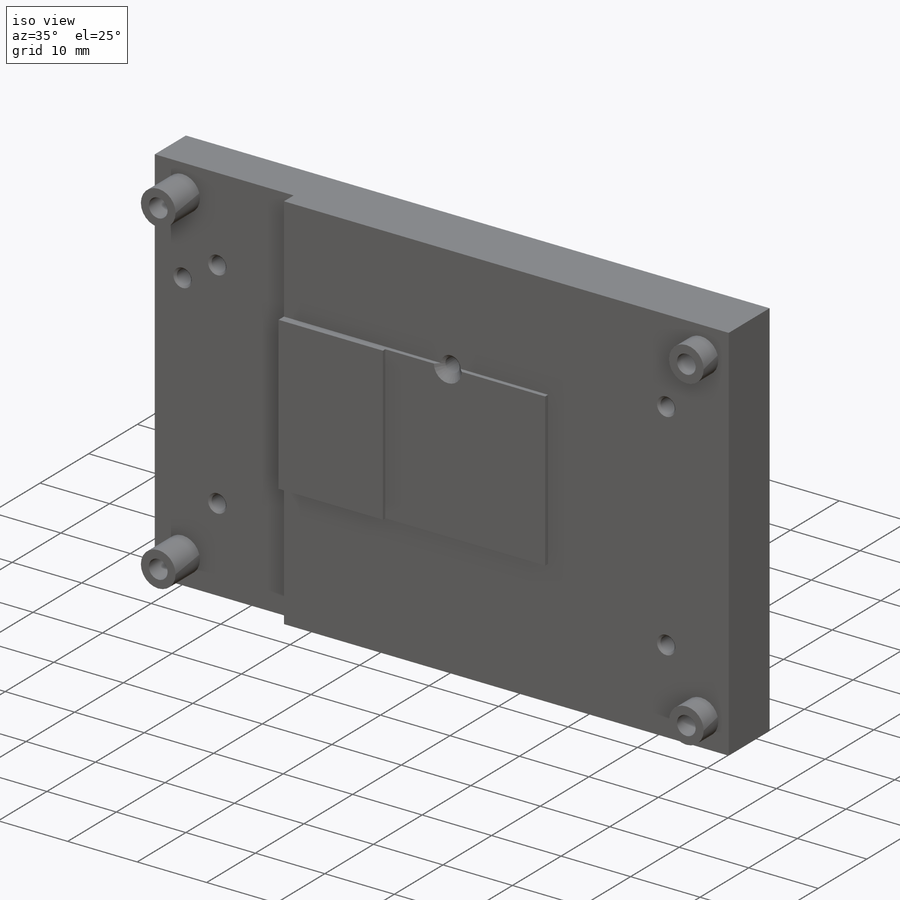
[diagram: iso view]
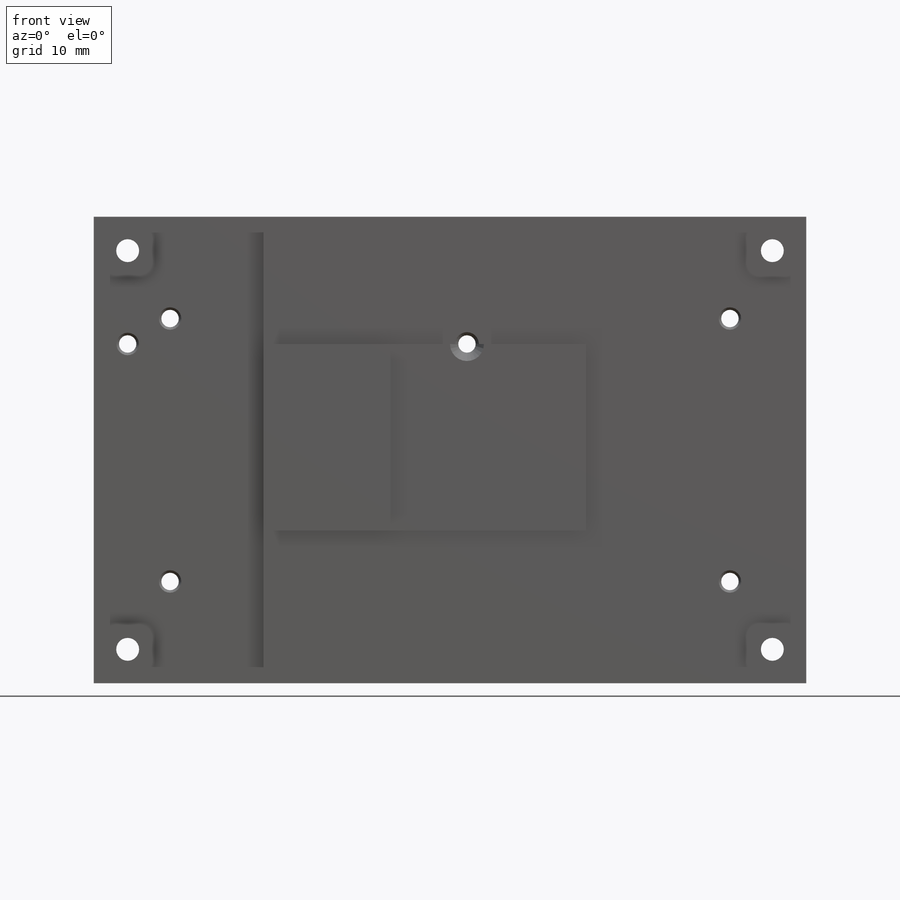
[diagram: front view]
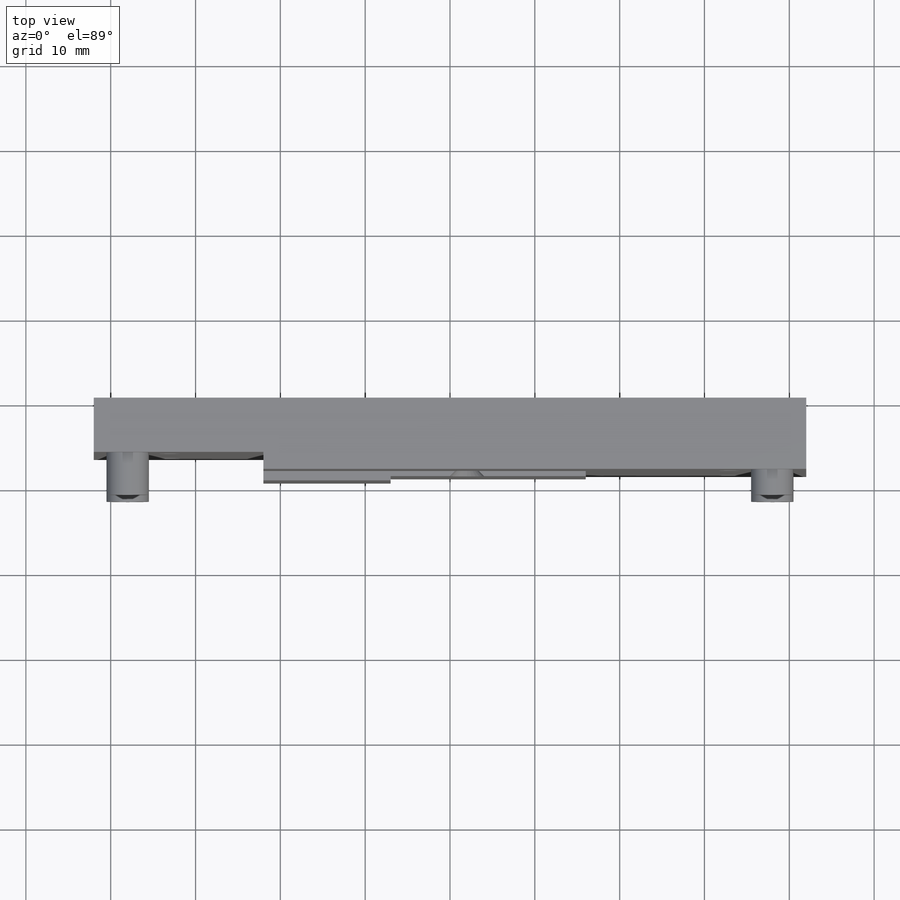
[diagram: top view]
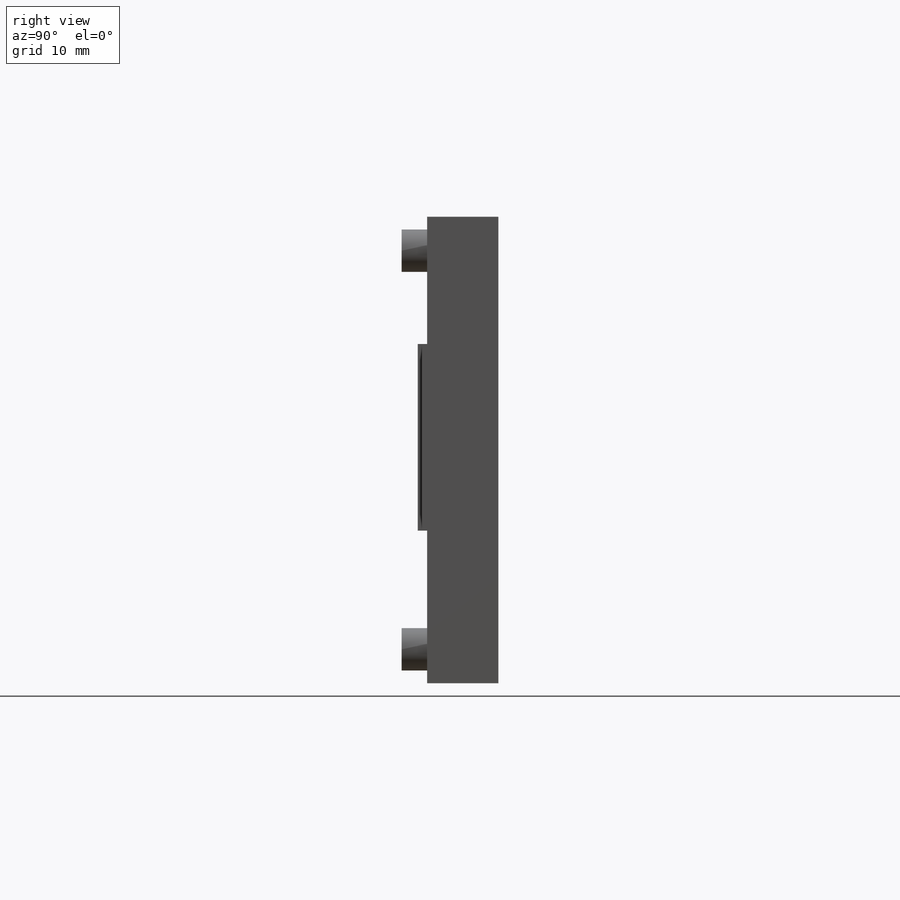
[diagram: right view]
SOLIDWORKS PART (.sldprt)
format: sldprt  version: not decoded by parser v0  size: 453,632 bytes
history: native  units: mm
features: sketch x12, thread x6, extrude x3, hole x3, cut_extrude x2, material x1, chamfer x1, plane x1, cut_revolve x1 (+16 scaffold rows collapsed)
feature tree (46):
  scaffold x16  (default folders/planes/origin — collapsed)
  material  "6061 Alloy"
  sketch  "Sketch1"  dims[D1=84.0mm D2=55.0mm]
  extrude  "Extrude1"  Depth=11.4mm
  hole  "Ø2.7 (2.7) Diameter Hole1"  Diameter=2.7mm Depth=11.4mm
  sketch  "Sketch3"  dims[D1=76.0mm D2=47.0mm]
  sketch  "Sketch2"  dims[hole-wizard template sketch: 60 standard entries collapsed; hole parameters kept: c18.Thru Hole Depth=11.4mm]
  sketch  "Sketch6"  dims[D1=5.0mm]
  cut_extrude  "Extrude2"  Depth=3mm
  sketch  "Sketch7"  dims[c1.D1=~20.26244mm c1.D2=15.0mm c1.D3=18.0mm c1.D4=49.0mm c2.D1=20.0mm]
  extrude  "Extrude3"  Depth=1.9mm
  sketch  "Sketch8"
  cut_extrude  "Extrude6"  Depth=5mm
  sketch  "Sketch9"  dims[D1=26.0mm]
  extrude  "Extrude7"  Depth=2.4mm
  hole  "M2.5x0.45 Tapped Hole1"  Diameter=2.05mm Depth=11.4mm
  sketch  "Sketch5"  dims[c1.D1=40.0mm c1.D2=40.0mm c1.D3=9.0mm c1.D4=12.0mm c2.D1=43.0mm c2.D2=75.0mm c2.D5=40.0mm c2.D6=40.0mm c2.D7=80.0mm]
  sketch  "Sketch4"  dims[hole-wizard template sketch: 60 standard entries collapsed; hole parameters kept: c18.Thru Tap Drill Depth=11.4mm]
  thread  "Hole Thread1"  Diameter=2.5mm  [1 undecoded]
  thread  "Hole Thread2"  Diameter=2.5mm  [1 undecoded]
  thread  "Hole Thread3"  Diameter=2.5mm  [1 undecoded]
  thread  "Hole Thread4"  Diameter=2.5mm  [1 undecoded]
  thread  "Hole Thread5"  Diameter=2.5mm  [1 undecoded]
  thread  "Hole Thread6"  Diameter=2.5mm  [1 undecoded]
  hole  "CBORE for M5 Hex Head Bolt1"  Diameter=2.7mm Depth=11.4mm
  sketch  "Sketch11"
  sketch  "Sketch10"  dims[hole-wizard template sketch: 42 standard entries collapsed; hole parameters kept: c12.Thru Hole Depth=11.4mm c12.C'Bore Dia.=6.0mm c12.C'Bore Depth=3.5mm]
  chamfer  "Chamfer1"  Distance=0.3mm Angle=45deg
  plane  "Plane1"
  sketch  "Sketch12"  dims[c1.D1=~2.786783mm c2.D1=45.0deg c2.D2=1.4mm]
  cut_revolve  "Cut-Revolve1"  Angle=360deg
decode coverage: 26 of 28 modeling features carry decoded parameters
note: ~ marks probable driven/reference dimensions
note: 6 parameter values undecoded
note: suppression state not decoded; provenance and decode notes live in map.json
